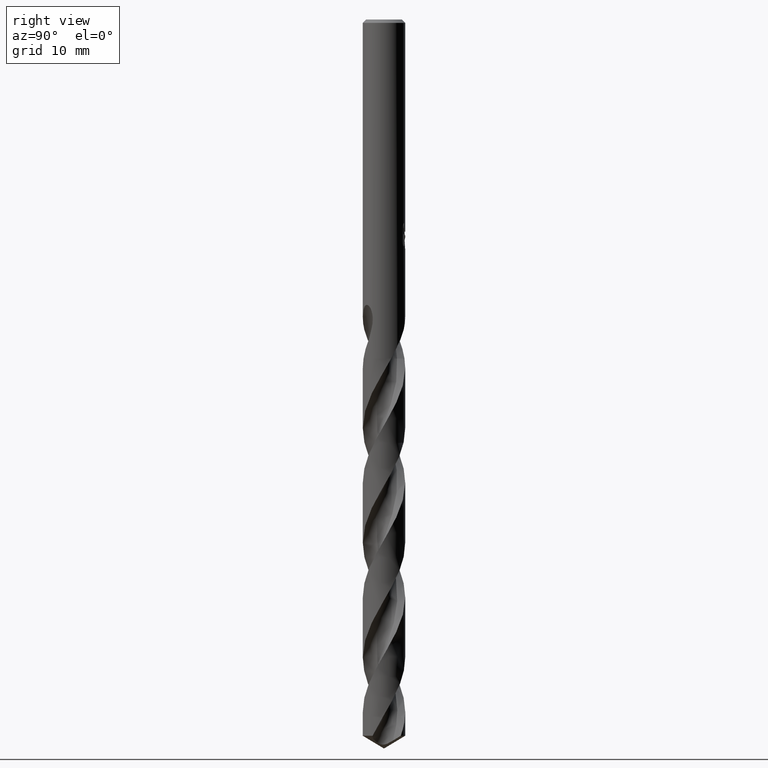
[diagram: clean part render]
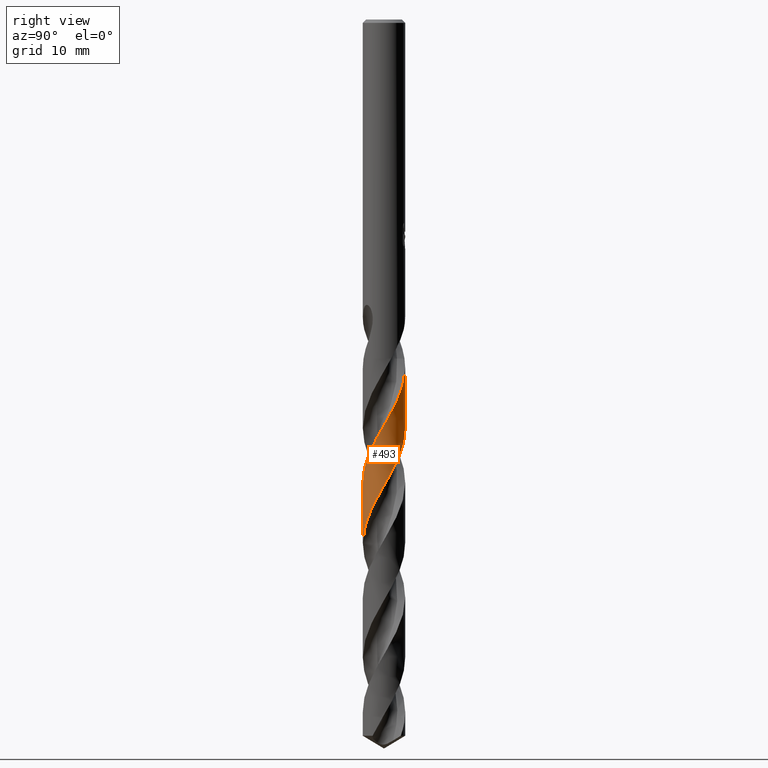
[diagram: same view with one face highlighted and labeled with its STEP entity id]
A machine part, right view. The second image highlights one B-rep face of the part: STEP entity #493.
In plain terms, the highlighted conical surface has half-angle 0 deg.
Its self-contained STEP definition (entity closure, byte-faithful):
#297=VERTEX_POINT('',#836);
#319=VERTEX_POINT('',#863);
#427=EDGE_CURVE('',#535,#625,#981,.T.);
#493=ADVANCED_FACE('',(#1054),#1055,.T.);
#535=VERTEX_POINT('',#1099);
#577=EDGE_CURVE('',#319,#297,#1144,.T.);
#625=VERTEX_POINT('',#1197);
#653=EDGE_CURVE('',#535,#297,#1226,.T.);
#723=EDGE_CURVE('',#319,#625,#1304,.T.);
#836=CARTESIAN_POINT('',(-3.25303538393132E-011,2.49991849177696,-48.2284428890503));
#863=CARTESIAN_POINT('',(5.03804079495512E-015,-2.49994888624177,-61.7533257783822));
#981=B_SPLINE_CURVE_WITH_KNOTS('',3,(#4296,#4297,#4298,#4299,#4300,#4301,#4302,#4303,#4304,#4305,#4306,#4307,#4308,#4309,#4310,#4311,#4312,#4313,#4314,#4315,#4316,#4317,#4318,#4319,#4320,#4321,#4322,#4323,#4324,#4325,#4326,#4327,#4328,#4329,#4330,#4331,#4332,#4333,#4334,#4335,#4336,#4337,#4338,#4339,#4340,#4341,#4342,#4343,#4344,#4345,#4346,#4347,#4348,#4349,#4350,#4351,#4352,#4353,#4354,#4355,#4356,#4357,#4358,#4359,#4360,#4361,#4362,#4363,#4364,#4365,#4366,#4367,#4368,#4369,#4370,#4371,#4372,#4373,#4374,#4375,#4376,#4377,#4378,#4379,#4380,#4381,#4382,#4383,#4384,#4385,#4386,#4387,#4388,#4389,#4390,#4391,#4392,#4393,#4394,#4395,#4396,#4397,#4398,#4399,#4400,#4401,#4402,#4403,#4404,#4405,#4406,#4407,#4408,#4409,#4410,#4411,#4412,#4413,#4414,#4415,#4416,#4417,#4418,#4419,#4420,#4421,#4422,#4423,#4424,#4425,#4426,#4427,#4428,#4429,#4430,#4431,#4432,#4433,#4434,#4435,#4436,#4437,#4438,#4439),.UNSPECIFIED.,.F.,.F.,(4,2,2,2,2,2,2,2,2,2,2,2,2,2,2,2,2,2,2,2,2,2,2,2,2,2,2,2,2,2,2,2,2,2,2,2,2,2,2,2,2,2,2,2,2,2,2,2,2,2,2,2,2,2,2,2,2,2,2,2,2,2,2,2,2,2,2,2,2,2,2,4),(0.0,0.486468637205227,1.70143637493507,2.65078647724114,2.69801349153739,4.16182905189554,4.6429783954723,5.46628311132585,5.94827483849944,6.39877087007006,7.24523484689165,8.20441665789214,9.24810311443783,9.8477909998023,10.7331853909711,11.1672259958564,11.625363494855,12.4724261364068,12.906437336658,13.3653260643295,14.2079547319024,14.641997185866,15.1050417514817,15.9459733997596,16.3799934687019,16.8449452236515,17.6850959199131,18.6445331844692,19.6704599442448,20.3000882134693,21.1899038744506,22.1468959354189,23.2066706816275,23.7792039585111,24.6641349036653,25.6218394952661,26.6704526256105,27.2601515904779,28.1449666044698,29.1024455730644,30.1480288419218,30.741495247271,31.6248153039225,32.5823064219067,33.6276174503397,34.2217031451702,35.1064275722155,36.0634961246279,37.1117651699325,37.7001542926035,38.5812158222974,39.5386039890281,40.5775897899624,41.1811129346128,42.066808697265,42.4999881124117,42.9552861335627,43.8019923656742,44.2351566778327,44.6918200879208,45.5369226242137,46.9929659432813,47.542581759945,48.4910765856151,49.2147009581288,50.3035476517773,50.8503957094521,51.124422856636,51.2613334881944,51.3296772470863,51.3638071214798,51.3979163649549),.UNSPECIFIED.);
#1054=FACE_OUTER_BOUND('',#5527,.T.);
#1055=CONICAL_SURFACE('',#5528,2.49995,2.2472996667905E-006);
#1099=CARTESIAN_POINT('',(2.22335611134229E-013,2.49990247498613,-41.1013155783713));
#1144=B_SPLINE_CURVE_WITH_KNOTS('',3,(#6248,#6249,#6250,#6251,#6252,#6253,#6254,#6255,#6256,#6257,#6258,#6259,#6260,#6261,#6262,#6263,#6264,#6265,#6266,#6267,#6268,#6269,#6270,#6271,#6272,#6273,#6274,#6275,#6276,#6277,#6278,#6279,#6280,#6281,#6282,#6283,#6284,#6285,#6286,#6287,#6288,#6289,#6290,#6291,#6292,#6293,#6294,#6295,#6296,#6297,#6298,#6299,#6300,#6301,#6302,#6303,#6304,#6305,#6306,#6307,#6308,#6309,#6310,#6311,#6312,#6313,#6314,#6315,#6316,#6317,#6318,#6319,#6320,#6321,#6322,#6323,#6324,#6325,#6326,#6327,#6328,#6329,#6330,#6331,#6332,#6333,#6334,#6335,#6336,#6337,#6338,#6339,#6340,#6341,#6342,#6343,#6344,#6345,#6346,#6347,#6348,#6349,#6350,#6351,#6352,#6353,#6354,#6355,#6356,#6357,#6358,#6359,#6360,#6361,#6362,#6363,#6364,#6365,#6366,#6367,#6368,#6369,#6370,#6371,#6372,#6373,#6374,#6375,#6376,#6377,#6378,#6379,#6380,#6381,#6382,#6383),.UNSPECIFIED.,.F.,.F.,(4,2,2,2,2,2,2,2,2,2,2,2,2,2,2,2,2,2,2,2,2,2,2,2,2,2,2,2,2,2,2,2,2,2,2,2,2,2,2,2,2,2,2,2,2,2,2,2,2,2,2,2,2,2,2,2,2,2,2,2,2,2,2,2,2,2,2,4),(0.0,0.886278397502903,1.32204169081257,2.18261664768507,3.04564370924408,3.80067059385453,4.53740041843498,5.01882588522134,5.37595036216083,6.24753012270079,6.68454403379869,7.54949154603431,8.41662492948235,9.23094094188893,10.0961326171289,10.951689009208,11.8162372038535,12.6738937643971,13.5379177555576,13.7540155512641,14.1122955819952,15.1661539040639,15.9652027910226,17.3983803228625,17.5965043179049,18.6329727992461,19.5041789576085,20.2656021995581,20.7036880004422,21.4789212415568,22.3468193610702,23.2057336438044,24.0729812520681,24.9340639387408,25.8008463293681,26.0177443173258,26.3804507561341,27.4526493470725,28.3235518769154,29.1625995744247,30.0364332642347,30.8079968926417,31.2475015125573,32.0108554049893,32.9705032910956,33.7728988423531,34.7323263784511,35.5291373155555,36.4881615031319,37.2855822175094,38.2442224838434,39.041615613592,39.9998435952577,40.7986928953968,41.756630720244,42.5523771381615,43.5098686209551,44.3064010584098,45.2636768558014,46.0598679420862,46.7659862267717,48.0015628490625,48.9342486415985,49.2817436475925,50.5073788189186,51.1202425278104,51.4296801553101,51.7391160032014),.UNSPECIFIED.);
#1197=CARTESIAN_POINT('',(-2.51147675318835E-015,-2.49993286979034,-54.6263494913692));
#1226=LINE('',#7945,#7946);
#1304=LINE('',#10417,#10418);
#4296=CARTESIAN_POINT('',(-0.63023927417457,2.41915243802108,-40.0045474541089));
#4297=CARTESIAN_POINT('',(-0.551399159961754,2.43969224495612,-40.1447508418798));
#4298=CARTESIAN_POINT('',(-0.471584726215849,2.45637022987312,-40.2847910390961));
#4299=CARTESIAN_POINT('',(-0.19001649202215,2.50096843306039,-40.7751877240867));
#4300=CARTESIAN_POINT('',(0.0140317019678368,2.50811246370385,-41.1247743867234));
#4301=CARTESIAN_POINT('',(0.374744364851608,2.47675386546307,-41.7488574890428));
#4302=CARTESIAN_POINT('',(0.531400281797423,2.44794390943703,-42.0217327031898));
#4303=CARTESIAN_POINT('',(0.691971950499202,2.40224132142337,-42.3089444993679));
#4304=CARTESIAN_POINT('',(0.699569891671286,2.40003972092589,-42.3225537752119));
#4305=CARTESIAN_POINT('',(0.942356900579779,2.32843816078953,-42.7581106926862));
#4306=CARTESIAN_POINT('',(1.16611993573616,2.22482202939972,-43.1787330540461));
#4307=CARTESIAN_POINT('',(1.43856091788785,2.04611371239262,-43.7395110178859));
#4308=CARTESIAN_POINT('',(1.50375150264655,1.99869018401294,-43.878094438111));
#4309=CARTESIAN_POINT('',(1.67392843651196,1.86185558757696,-44.2543259970221));
#4310=CARTESIAN_POINT('',(1.77403717966519,1.76673563449703,-44.491580932485));
#4311=CARTESIAN_POINT('',(1.91953296309867,1.60357851801577,-44.8680211590562));
#4312=CARTESIAN_POINT('',(1.97032145782205,1.54075047010092,-45.0069023948709));
#4313=CARTESIAN_POINT('',(2.0625448130867,1.41462575050765,-45.2757809053947));
#4314=CARTESIAN_POINT('',(2.10429705729432,1.35173377000657,-45.4055592183222));
#4315=CARTESIAN_POINT('',(2.21610031093161,1.16556906234674,-45.7796630559771));
#4316=CARTESIAN_POINT('',(2.27862167315151,1.03805334227012,-46.0235915468455));
#4317=CARTESIAN_POINT('',(2.3882249898122,0.75615433323855,-46.5443837226284));
#4318=CARTESIAN_POINT('',(2.43186031971346,0.601184444660752,-46.8199810966656));
#4319=CARTESIAN_POINT('',(2.49130335391562,0.271156754302589,-47.3977764648751));
#4320=CARTESIAN_POINT('',(2.50417536818245,0.096328049025362,-47.6982196466871));
#4321=CARTESIAN_POINT('',(2.49553174580369,-0.178917219116769,-48.1721965060367));
#4322=CARTESIAN_POINT('',(2.48632603374813,-0.279040124506407,-48.3448428224533));
#4323=CARTESIAN_POINT('',(2.4486886545749,-0.524890377808177,-48.7732847823227));
#4324=CARTESIAN_POINT('',(2.41324705788032,-0.669212226609165,-49.0284699165517));
#4325=CARTESIAN_POINT('',(2.34166097091287,-0.878360868937891,-49.4091019776542));
#4326=CARTESIAN_POINT('',(2.31511673579383,-0.946115198628598,-49.5342244778735));
#4327=CARTESIAN_POINT('',(2.25454575340893,-1.08283413039775,-49.7915653493195));
#4328=CARTESIAN_POINT('',(2.22023800341175,-1.15153918115662,-49.9235862487342));
#4329=CARTESIAN_POINT('',(2.11368487167858,-1.34241554967655,-50.300189635384));
#4330=CARTESIAN_POINT('',(2.03409509743376,-1.46021276440881,-50.5443660356052));
#4331=CARTESIAN_POINT('',(1.899230833797,-1.62721652860835,-50.913975158729));
#4332=CARTESIAN_POINT('',(1.85108472704729,-1.68178544523659,-51.0391039672916));
#4333=CARTESIAN_POINT('',(1.74725636343322,-1.78959191272419,-51.296683311779));
#4334=CARTESIAN_POINT('',(1.69139056762374,-1.84248063520467,-51.4289346646493));
#4335=CARTESIAN_POINT('',(1.52633336160066,-1.98490837654315,-51.8045203022134));
#4336=CARTESIAN_POINT('',(1.41182761779504,-2.0679259432241,-52.0474538257519));
#4337=CARTESIAN_POINT('',(1.22861440207591,-2.1784023495396,-52.4158387039007));
#4338=CARTESIAN_POINT('',(1.16470384969782,-2.2132330951561,-52.5409924218303));
#4339=CARTESIAN_POINT('',(1.02963261727297,-2.27936978225272,-52.799811283211));
#4340=CARTESIAN_POINT('',(0.958391861343593,-2.3102267924436,-52.9332726991364));
#4341=CARTESIAN_POINT('',(0.754116139445022,-2.38763589106131,-53.309613433004));
#4342=CARTESIAN_POINT('',(0.618362370216666,-2.4263437741088,-53.5520896676842));
#4343=CARTESIAN_POINT('',(0.408658639558099,-2.46737630368475,-53.9200237329258));
#4344=CARTESIAN_POINT('',(0.336681339637474,-2.47822498515785,-54.0451865394183));
#4345=CARTESIAN_POINT('',(0.186798592917284,-2.49416204521275,-54.304580754449));
#4346=CARTESIAN_POINT('',(0.108969032838635,-2.49877102450347,-54.4386062607295));
#4347=CARTESIAN_POINT('',(-0.109680622028728,-2.50148984562832,-54.8153171955854));
#4348=CARTESIAN_POINT('',(-0.250365896236458,-2.49134862398352,-55.0575982858464));
#4349=CARTESIAN_POINT('',(-0.548328848182348,-2.44435547610259,-55.5769978383693));
#4350=CARTESIAN_POINT('',(-0.704355298506368,-2.40403886781948,-55.8528436761394));
#4351=CARTESIAN_POINT('',(-1.01692039258657,-2.29021927557772,-56.4259732269607));
#4352=CARTESIAN_POINT('',(-1.17201056375022,-2.21487551462527,-56.7215437155986));
#4353=CARTESIAN_POINT('',(-1.40789132166819,-2.06849751462821,-57.1993621052128));
#4354=CARTESIAN_POINT('',(-1.49395194372213,-2.00722125289479,-57.3807246657352));
#4355=CARTESIAN_POINT('',(-1.69163204885684,-1.84670493455436,-57.8193777630935));
#4356=CARTESIAN_POINT('',(-1.79878259246649,-1.74250987950147,-58.0760025691986));
#4357=CARTESIAN_POINT('',(-2.00059098670249,-1.5076765295902,-58.6091300175243));
#4358=CARTESIAN_POINT('',(-2.09317762406835,-1.37624063914259,-58.8843439497679));
#4359=CARTESIAN_POINT('',(-2.26039061102714,-1.0825399866964,-59.466661311231));
#4360=CARTESIAN_POINT('',(-2.33160257245915,-0.919209416437894,-59.7719619981566));
#4361=CARTESIAN_POINT('',(-2.41369847831218,-0.658033615283313,-60.2431568860676));
#4362=CARTESIAN_POINT('',(-2.43718143889182,-0.56487716871242,-60.4081528754783));
#4363=CARTESIAN_POINT('',(-2.48317366674993,-0.32493993953357,-60.8289984250749));
#4364=CARTESIAN_POINT('',(-2.49808323341823,-0.177025426941894,-61.0842746486708));
#4365=CARTESIAN_POINT('',(-2.50162440357731,0.131946722297573,-61.6163092745164));
#4366=CARTESIAN_POINT('',(-2.48798694580918,0.292292481119401,-61.8917786276353));
#4367=CARTESIAN_POINT('',(-2.42742976577201,0.623080509072719,-62.4711943457673));
#4368=CARTESIAN_POINT('',(-2.37761959909588,0.792228184063567,-62.7733677628859));
#4369=CARTESIAN_POINT('',(-2.27265282835744,1.04622967840465,-63.2463937949792));
#4370=CARTESIAN_POINT('',(-2.22949158986055,1.13529967344684,-63.4163562578341));
#4371=CARTESIAN_POINT('',(-2.10869437673228,1.35099329696682,-63.8422092587578));
#4372=CARTESIAN_POINT('',(-2.02481246708744,1.47374684224601,-64.0975022673654));
#4373=CARTESIAN_POINT('',(-1.82848926542095,1.71236510615944,-64.6295435805106));
#4374=CARTESIAN_POINT('',(-1.71477344247702,1.82622518778477,-64.9050018740606));
#4375=CARTESIAN_POINT('',(-1.45574234178603,2.03993314064102,-65.4835930263958));
#4376=CARTESIAN_POINT('',(-1.30911016807628,2.13700693551224,-65.78496000584));
#4377=CARTESIAN_POINT('',(-1.06511862909095,2.2638977421492,-66.2582950777815));
#4378=CARTESIAN_POINT('',(-0.974140526669147,2.30450675957973,-66.4293742951805));
#4379=CARTESIAN_POINT('',(-0.742382297705833,2.39178001297318,-66.8559706811602));
#4380=CARTESIAN_POINT('',(-0.599360870915794,2.43156940755313,-67.110886672772));
#4381=CARTESIAN_POINT('',(-0.295676193742174,2.48760673868083,-67.6426093173354));
#4382=CARTESIAN_POINT('',(-0.135318833698067,2.50145557411318,-67.9181269333363));
#4383=CARTESIAN_POINT('',(0.200497152468749,2.49806804843248,-68.4967604907826));
#4384=CARTESIAN_POINT('',(0.375175831353684,2.47787033839448,-68.7981110143576));
#4385=CARTESIAN_POINT('',(0.643653695126474,2.4177425782955,-69.271642181506));
#4386=CARTESIAN_POINT('',(0.739519343024714,2.39016128164612,-69.4429342049846));
#4387=CARTESIAN_POINT('',(0.973365735525981,2.30746940000492,-69.8702006118231));
#4388=CARTESIAN_POINT('',(1.10861934608028,2.24562676040282,-70.1255703674926));
#4389=CARTESIAN_POINT('',(1.37713612758515,2.09263707027106,-70.6576816595187));
#4390=CARTESIAN_POINT('',(1.50864439626484,1.99990130530372,-70.9331340379712));
#4391=CARTESIAN_POINT('',(1.76361557285417,1.7805685073761,-71.512615234925));
#4392=CARTESIAN_POINT('',(1.88449317736719,1.6521214548089,-71.8148701464689));
#4393=CARTESIAN_POINT('',(2.05065005966418,1.43333594035878,-72.287703358859));
#4394=CARTESIAN_POINT('',(2.10564959073519,1.35123943348957,-72.4573907578603));
#4395=CARTESIAN_POINT('',(2.23050065628513,1.13867625667694,-72.8820381855306));
#4396=CARTESIAN_POINT('',(2.29392600579113,1.00480844832384,-73.1364072271557));
#4397=CARTESIAN_POINT('',(2.40081903976784,0.715375941212835,-73.6676619161999));
#4398=CARTESIAN_POINT('',(2.44180966287301,0.559678555287591,-73.9432578395703));
#4399=CARTESIAN_POINT('',(2.49554932486963,0.229125711535923,-74.5202658139894));
#4400=CARTESIAN_POINT('',(2.50546239518125,0.0545630521055626,-74.8199276829322));
#4401=CARTESIAN_POINT('',(2.49226297102585,-0.220881707907648,-75.2945508404867));
#4402=CARTESIAN_POINT('',(2.48126670778986,-0.321666388454583,-75.4686260022179));
#4403=CARTESIAN_POINT('',(2.43913858177928,-0.567972514336096,-75.8990736559037));
#4404=CARTESIAN_POINT('',(2.40106425390862,-0.7119698253762,-76.1548249739105));
#4405=CARTESIAN_POINT('',(2.3256369547245,-0.920114510441172,-76.5360137203361));
#4406=CARTESIAN_POINT('',(2.29788758622386,-0.987378403830784,-76.6611235461725));
#4407=CARTESIAN_POINT('',(2.23502374774042,-1.12268846160693,-76.9178810252947));
#4408=CARTESIAN_POINT('',(2.19965974528771,-1.19048331987838,-77.0493335148247));
#4409=CARTESIAN_POINT('',(2.08984671531235,-1.37936530404141,-77.4257245360845));
#4410=CARTESIAN_POINT('',(2.00807376745827,-1.49591742858655,-77.6702574092996));
#4411=CARTESIAN_POINT('',(1.8701360340729,-1.66066462107644,-78.0402161153171));
#4412=CARTESIAN_POINT('',(1.82103229896464,-1.71436947125274,-78.1653362948168));
#4413=CARTESIAN_POINT('',(1.71547187776991,-1.82015665585737,-78.4225138146567));
#4414=CARTESIAN_POINT('',(1.65885211303397,-1.87190187838602,-78.5543736295386));
#4415=CARTESIAN_POINT('',(1.49098256480459,-2.01172176927911,-78.9307398936455));
#4416=CARTESIAN_POINT('',(1.37444749969556,-2.0930762231595,-79.1748415845832));
#4417=CARTESIAN_POINT('',(1.03999128238016,-2.28651088592198,-79.8400916458355));
#4418=CARTESIAN_POINT('',(0.811580071901666,-2.37718580942546,-80.2586657047953));
#4419=CARTESIAN_POINT('',(0.4839361486126,-2.45443969589518,-80.8385618307251));
#4420=CARTESIAN_POINT('',(0.3930176844705,-2.47063131272022,-80.9973192780443));
#4421=CARTESIAN_POINT('',(0.143236969806313,-2.50096516397592,-81.4303641273931));
#4422=CARTESIAN_POINT('',(-0.016305660438358,-2.50500151118463,-81.7038608535617));
#4423=CARTESIAN_POINT('',(-0.296191631917943,-2.48535463430219,-82.187375402752));
#4424=CARTESIAN_POINT('',(-0.416583117097334,-2.4680360206241,-82.3963533301014));
#4425=CARTESIAN_POINT('',(-0.713895176010383,-2.40286715998223,-82.9203124540353));
#4426=CARTESIAN_POINT('',(-0.887640080150027,-2.34424552248122,-83.2341214757139));
#4427=CARTESIAN_POINT('',(-1.13664401675851,-2.22855504650329,-83.7070478485033));
#4428=CARTESIAN_POINT('',(-1.21772516457046,-2.18530903839893,-83.8650199901107));
#4429=CARTESIAN_POINT('',(-1.3356257624756,-2.11381598393746,-84.1023048974447));
#4430=CARTESIAN_POINT('',(-1.37431985627705,-2.08886586921727,-84.1814913620037));
#4431=CARTESIAN_POINT('',(-1.43128427187392,-2.0498663682352,-84.3002724241404));
#4432=CARTESIAN_POINT('',(-1.45008215951313,-2.03661211599013,-84.3398434150712));
#4433=CARTESIAN_POINT('',(-1.47798469879961,-2.0163561018922,-84.3991730438693));
#4434=CARTESIAN_POINT('',(-1.48722854817933,-2.00954774737749,-84.4189278928481));
#4435=CARTESIAN_POINT('',(-1.50101736504893,-1.99924465298597,-84.4485490012606));
#4436=CARTESIAN_POINT('',(-1.50559794825064,-1.99579739422114,-84.4584146305049));
#4437=CARTESIAN_POINT('',(-1.5147323513108,-1.98887367783276,-84.4781401840664));
#4438=CARTESIAN_POINT('',(-1.51928438824936,-1.98539860124352,-84.4879961709666));
#4439=CARTESIAN_POINT('',(-1.52382250889804,-1.98190942310078,-84.4978484524311));
#5527=EDGE_LOOP('',(#13087,#13088,#13089,#13090));
#5528=AXIS2_PLACEMENT_3D('',#13091,#13092,#13093);
#6248=CARTESIAN_POINT('',(2.10422651157214,-1.34990028816832,-84.4978484524311));
#6249=CARTESIAN_POINT('',(2.18391051940883,-1.22568767693637,-84.2419221234407));
#6250=CARTESIAN_POINT('',(2.25267752858025,-1.09430014026706,-83.9875843065094));
#6251=CARTESIAN_POINT('',(2.33748630874384,-0.889651263275526,-83.6067592836251));
#6252=CARTESIAN_POINT('',(2.36246314593678,-0.821024574818709,-83.4814096927845));
#6253=CARTESIAN_POINT('',(2.42771079116918,-0.613980713040816,-83.1079151483119));
#6254=CARTESIAN_POINT('',(2.45903468096972,-0.473166537876488,-82.8590383246167));
#6255=CARTESIAN_POINT('',(2.49716404402354,-0.187143653563787,-82.3624378949042));
#6256=CARTESIAN_POINT('',(2.50380559083049,-0.0425442718411372,-82.1151477797093));
#6257=CARTESIAN_POINT('',(2.49276955107151,0.228141305405703,-81.6490463268321));
#6258=CARTESIAN_POINT('',(2.47806147155974,0.353680978120265,-81.4306614383065));
#6259=CARTESIAN_POINT('',(2.43045502791211,0.598331420598162,-81.001035364795));
#6260=CARTESIAN_POINT('',(2.39802777633201,0.717386075218273,-80.7897584688843));
#6261=CARTESIAN_POINT('',(2.329997646209,0.909706117351193,-80.4392540784898));
#6262=CARTESIAN_POINT('',(2.2994872154174,0.98426411078822,-80.3009223924716));
#6263=CARTESIAN_POINT('',(2.24026877306446,1.11117198918545,-80.0594204305445));
#6264=CARTESIAN_POINT('',(2.21316764115295,1.16420732200526,-79.956354486581));
#6265=CARTESIAN_POINT('',(2.11357158886897,1.34307471611632,-79.6028166187481));
#6266=CARTESIAN_POINT('',(2.03188521531179,1.46377177523532,-79.353484342845));
#6267=CARTESIAN_POINT('',(1.89385711739109,1.63358007177736,-78.977516022711));
#6268=CARTESIAN_POINT('',(1.84534453554116,1.68818209823639,-78.8521023798196));
#6269=CARTESIAN_POINT('',(1.69407502367471,1.84414673418926,-78.4777799723891));
#6270=CARTESIAN_POINT('',(1.58473039416213,1.93893586297395,-78.2280311735831));
#6271=CARTESIAN_POINT('',(1.35029309826038,2.10894558742926,-77.7299370968937));
#6272=CARTESIAN_POINT('',(1.2258084696228,2.18364004416432,-77.4819285785558));
#6273=CARTESIAN_POINT('',(0.973417261024085,2.30670045254952,-76.9982591013042));
#6274=CARTESIAN_POINT('',(0.846529649637706,2.35623360400844,-76.7630133118574));
#6275=CARTESIAN_POINT('',(0.577494001158044,2.43666431763731,-76.2798265560153));
#6276=CARTESIAN_POINT('',(0.43559991696773,2.46598186897915,-76.0322999949254));
#6277=CARTESIAN_POINT('',(0.149979625742673,2.49957022281733,-75.5372582443062));
#6278=CARTESIAN_POINT('',(0.00691091834469784,2.50405710939532,-75.290079187964));
#6279=CARTESIAN_POINT('',(-0.280196568738157,2.48842646502472,-74.7952131290012));
#6280=CARTESIAN_POINT('',(-0.423535086926787,2.46807392534988,-74.5478750727136));
#6281=CARTESIAN_POINT('',(-0.703970020148484,2.40309382149528,-74.0524707022218));
#6282=CARTESIAN_POINT('',(-0.840444500968345,2.35882867128235,-73.804709848578));
#6283=CARTESIAN_POINT('',(-1.10548347047697,2.24691488659643,-73.3094567509056));
#6284=CARTESIAN_POINT('',(-1.23338498475797,2.17933207965287,-73.0623055898389));
#6285=CARTESIAN_POINT('',(-1.38511097768701,2.08149949808019,-72.7516757260458));
#6286=CARTESIAN_POINT('',(-1.41501299565121,2.0612873847803,-72.6895340091172));
#6287=CARTESIAN_POINT('',(-1.49323577683332,2.00591281497585,-72.5242551982023));
#6288=CARTESIAN_POINT('',(-1.54069085620592,1.96969379596971,-72.4209437771633));
#6289=CARTESIAN_POINT('',(-1.72235558204143,1.82047579043646,-72.0149647316355));
#6290=CARTESIAN_POINT('',(-1.84601547705915,1.69500796813406,-71.7145069880974));
#6291=CARTESIAN_POINT('',(-2.0387596968462,1.45296690555463,-71.1825715017964));
#6292=CARTESIAN_POINT('',(-2.1132644954421,1.3422493976294,-70.9523775677694));
#6293=CARTESIAN_POINT('',(-2.29544860993754,1.01863090672821,-70.3118087059704));
#6294=CARTESIAN_POINT('',(-2.38197549857007,0.795414117299676,-69.9066863983262));
#6295=CARTESIAN_POINT('',(-2.44304414074363,0.53145914375697,-69.4385511523219));
#6296=CARTESIAN_POINT('',(-2.44982106072446,0.499291885486794,-69.3816548482553));
#6297=CARTESIAN_POINT('',(-2.48816524149092,0.297601494131383,-69.0270256614254));
#6298=CARTESIAN_POINT('',(-2.50281269770423,0.125145060261531,-68.7316955068999));
#6299=CARTESIAN_POINT('',(-2.49672930163821,-0.193110450621747,-68.1845743448467));
#6300=CARTESIAN_POINT('',(-2.48127777060051,-0.337731953678684,-67.933839361142));
#6301=CARTESIAN_POINT('',(-2.42915927371862,-0.604173726846541,-67.4657052774562));
#6302=CARTESIAN_POINT('',(-2.39541892974982,-0.726559443945997,-67.2483512749438));
#6303=CARTESIAN_POINT('',(-2.32774352043654,-0.914738607590079,-66.9047602019971));
#6304=CARTESIAN_POINT('',(-2.30005428589712,-0.982273889469603,-66.7794144105665));
#6305=CARTESIAN_POINT('',(-2.21540831229693,-1.16550142081452,-66.4316088108003));
#6306=CARTESIAN_POINT('',(-2.15232859577568,-1.27826528153887,-66.2084184839495));
#6307=CARTESIAN_POINT('',(-2.00056085017069,-1.50614040701332,-65.7372627024989));
#6308=CARTESIAN_POINT('',(-1.91012155199153,-1.61929708855963,-65.4897860350041));
#6309=CARTESIAN_POINT('',(-1.71175677536138,-1.82760502284685,-64.9946590759656));
#6310=CARTESIAN_POINT('',(-1.60447415264739,-1.92247597815243,-64.7473399680444));
#6311=CARTESIAN_POINT('',(-1.37353471988465,-2.09381164367129,-64.2523932174431));
#6312=CARTESIAN_POINT('',(-1.2502697401742,-2.16967016875544,-64.0051145228019));
#6313=CARTESIAN_POINT('',(-0.992921406082871,-2.29879291640916,-63.5096283375847));
#6314=CARTESIAN_POINT('',(-0.859549085651961,-2.35191391853874,-63.2617171147435));
#6315=CARTESIAN_POINT('',(-0.58407876890089,-2.43504481501758,-62.7663663301961));
#6316=CARTESIAN_POINT('',(-0.442524692028141,-2.46470549591388,-62.5192651634518));
#6317=CARTESIAN_POINT('',(-0.263301682590791,-2.4863079504777,-62.2086753785459));
#6318=CARTESIAN_POINT('',(-0.227370762943145,-2.48984989078538,-62.1465166508266));
#6319=CARTESIAN_POINT('',(-0.131264119573438,-2.49722948217781,-61.9803044065041));
#6320=CARTESIAN_POINT('',(-0.071078340467773,-2.49966283908317,-61.8760709492545));
#6321=CARTESIAN_POINT('',(0.166964778903551,-2.50070050654466,-61.4649857511353));
#6322=CARTESIAN_POINT('',(0.344646096943616,-2.48249588084999,-61.1604329649555));
#6323=CARTESIAN_POINT('',(0.660916276797314,-2.41535107245957,-60.6045490033706));
#6324=CARTESIAN_POINT('',(0.799581819362188,-2.37303467025976,-60.3544179398591));
#6325=CARTESIAN_POINT('',(1.06286485874598,-2.26703259176386,-59.865274613247));
#6326=CARTESIAN_POINT('',(1.18758891723734,-2.20427288862228,-59.6265345489228));
#6327=CARTESIAN_POINT('',(1.43041881980591,-2.05541490413929,-59.1369456996414));
#6328=CARTESIAN_POINT('',(1.54726677296284,-1.96892169041972,-58.886286277509));
#6329=CARTESIAN_POINT('',(1.7515805878999,-1.78830224504781,-58.4160800751979));
#6330=CARTESIAN_POINT('',(1.84086033413782,-1.69628176566383,-58.1965914868294));
#6331=CARTESIAN_POINT('',(1.96945674388713,-1.54151652894575,-57.8508505580048));
#6332=CARTESIAN_POINT('',(2.01358841201128,-1.48339775212739,-57.7255180549985));
#6333=CARTESIAN_POINT('',(2.12712721971478,-1.31948380381442,-57.3818541179945));
#6334=CARTESIAN_POINT('',(2.19123072475325,-1.21007218919216,-57.1628075249933));
#6335=CARTESIAN_POINT('',(2.31670324430933,-0.952878239955466,-56.6703492924689));
#6336=CARTESIAN_POINT('',(2.37269715243495,-0.803334732888495,-56.3978733175559));
#6337=CARTESIAN_POINT('',(2.44866379985888,-0.52100853250854,-55.8941790282111));
#6338=CARTESIAN_POINT('',(2.4729447354937,-0.389865069022932,-55.6638190710555));
#6339=CARTESIAN_POINT('',(2.50306684976066,-0.0986860410636435,-55.160082936765));
#6340=CARTESIAN_POINT('',(2.50425724616865,0.0610149128880907,-54.8875703579543));
#6341=CARTESIAN_POINT('',(2.4786442302707,0.351391783212719,-54.3853425791265));
#6342=CARTESIAN_POINT('',(2.45659156441358,0.482035727532276,-54.1564971838032));
#6343=CARTESIAN_POINT('',(2.38532189997701,0.765051279656316,-53.6542722080325));
#6344=CARTESIAN_POINT('',(2.33171481416987,0.915486285703406,-53.3817654397067));
#6345=CARTESIAN_POINT('',(2.20808197754027,1.17964028241389,-52.8792794868638));
#6346=CARTESIAN_POINT('',(2.1425094665368,1.29494280835259,-52.6501675167523));
#6347=CARTESIAN_POINT('',(1.97844399480957,1.53649119619251,-52.1476810523007));
#6348=CARTESIAN_POINT('',(1.87651158060933,1.65942622626859,-51.8751772516106));
#6349=CARTESIAN_POINT('',(1.66977705925567,1.86521230644506,-51.372612923716));
#6350=CARTESIAN_POINT('',(1.56861055447046,1.95107144463603,-51.1434181107762));
#6351=CARTESIAN_POINT('',(1.33163466229057,2.12173876813976,-50.640861749908));
#6352=CARTESIAN_POINT('',(1.1937339188501,2.2022651821138,-50.3683689633164));
#6353=CARTESIAN_POINT('',(0.92870697808432,2.32480902070979,-49.8653137938829));
#6354=CARTESIAN_POINT('',(0.80394554268879,2.37085474899068,-49.6356153882959));
#6355=CARTESIAN_POINT('',(0.522485900573845,2.44990269227857,-49.1325342430695));
#6356=CARTESIAN_POINT('',(0.365309082023877,2.47820672736415,-48.860019509751));
#6357=CARTESIAN_POINT('',(0.0747741071285086,2.50229934462377,-48.3577385640992));
#6358=CARTESIAN_POINT('',(-0.0577464454401751,2.50275969160315,-48.128840629998));
#6359=CARTESIAN_POINT('',(-0.348778685505855,2.48059424698571,-47.6265746868936));
#6360=CARTESIAN_POINT('',(-0.506128067628888,2.45331905726231,-47.3540788752079));
#6361=CARTESIAN_POINT('',(-0.787497748263798,2.37633601320078,-46.851503245865));
#6362=CARTESIAN_POINT('',(-0.912317372702883,2.33127611404764,-46.622293894442));
#6363=CARTESIAN_POINT('',(-1.17828565904237,2.21057174484027,-46.1196706819431));
#6364=CARTESIAN_POINT('',(-1.31675722879394,2.13098076534383,-45.8471271095544));
#6365=CARTESIAN_POINT('',(-1.55466756664794,1.9621707545562,-45.3445110531989));
#6366=CARTESIAN_POINT('',(-1.65646262865216,1.87704200665721,-45.115295238441));
#6367=CARTESIAN_POINT('',(-1.83509779825274,1.70170795241946,-44.6845739361308));
#6368=CARTESIAN_POINT('',(-1.91316060192261,1.61345128189301,-44.4828934801601));
#6369=CARTESIAN_POINT('',(-2.10998109522097,1.35644960352952,-43.9263672877096));
#6370=CARTESIAN_POINT('',(-2.21447447123888,1.17816408330325,-43.5709620767073));
#6371=CARTESIAN_POINT('',(-2.357472475505,0.846187008653122,-42.9495277667512));
#6372=CARTESIAN_POINT('',(-2.40543495307395,0.698170681270045,-42.6837973369383));
#6373=CARTESIAN_POINT('',(-2.45198216223094,0.490555894946635,-42.3165399767714));
#6374=CARTESIAN_POINT('',(-2.46266789228368,0.433751269372562,-42.216551408497));
#6375=CARTESIAN_POINT('',(-2.50212435403315,0.174780076262808,-41.7648259537733));
#6376=CARTESIAN_POINT('',(-2.50803657500966,-0.0299203188581807,-41.4171044727308));
#6377=CARTESIAN_POINT('',(-2.47950357410536,-0.334634553560284,-40.8893937919551));
#6378=CARTESIAN_POINT('',(-2.46381520254243,-0.435317467968807,-40.7126795517669));
#6379=CARTESIAN_POINT('',(-2.43101451204852,-0.585080589612131,-40.4480797529434));
#6380=CARTESIAN_POINT('',(-2.41844253030357,-0.635062430097526,-40.3593838398998));
#6381=CARTESIAN_POINT('',(-2.390166010806,-0.734352081821003,-40.1820468408238));
#6382=CARTESIAN_POINT('',(-2.37447587732375,-0.783611200737682,-40.09350865866));
#6383=CARTESIAN_POINT('',(-2.35723366210569,-0.832435900024549,-40.0049317940782));
#7945=CARTESIAN_POINT('',(-3.06171821247249E-016,2.49995,-62.2489242262156));
#7946=VECTOR('',#13211,1.0);
#10417=CARTESIAN_POINT('',(3.06119109600402E-016,-2.49995,-62.2489242262156));
#10418=VECTOR('',#13289,1.0);
#13087=ORIENTED_EDGE('',*,*,#653,.F.);
#13088=ORIENTED_EDGE('',*,*,#427,.T.);
#13089=ORIENTED_EDGE('',*,*,#723,.F.);
#13090=ORIENTED_EDGE('',*,*,#577,.T.);
#13091=CARTESIAN_POINT('',(0.0,0.0,-62.2489242262156));
#13092=DIRECTION('',(0.0,-0.0,-1.0));
#13093=DIRECTION('',(0.0,1.0,0.0));
#13211=DIRECTION('',(-2.75205745089224E-022,2.24729966678861E-006,-0.999999999997475));
#13289=DIRECTION('',(-2.75205745089224E-022,2.24729966678861E-006,0.999999999997475));